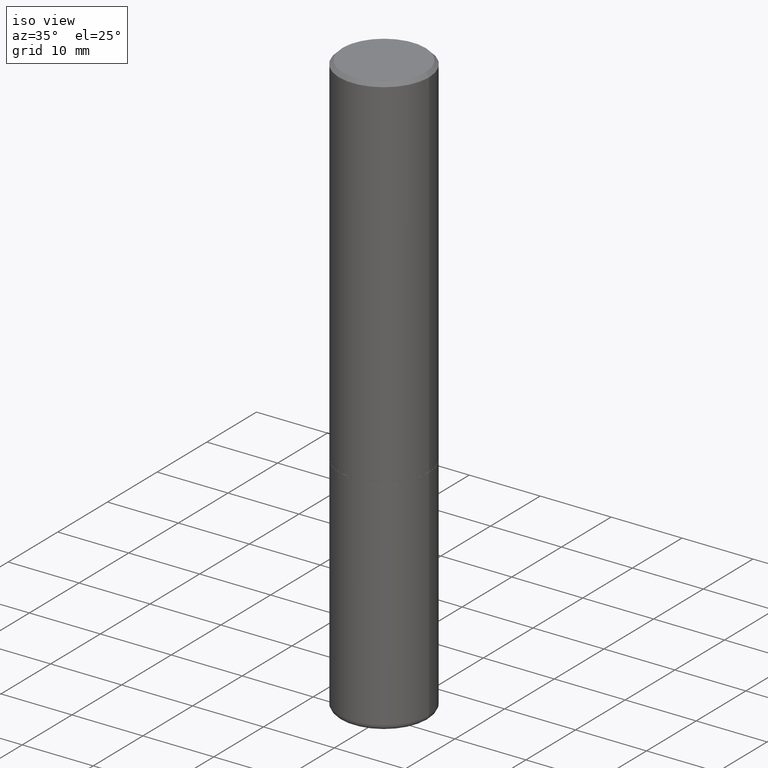
[diagram: clean part render]
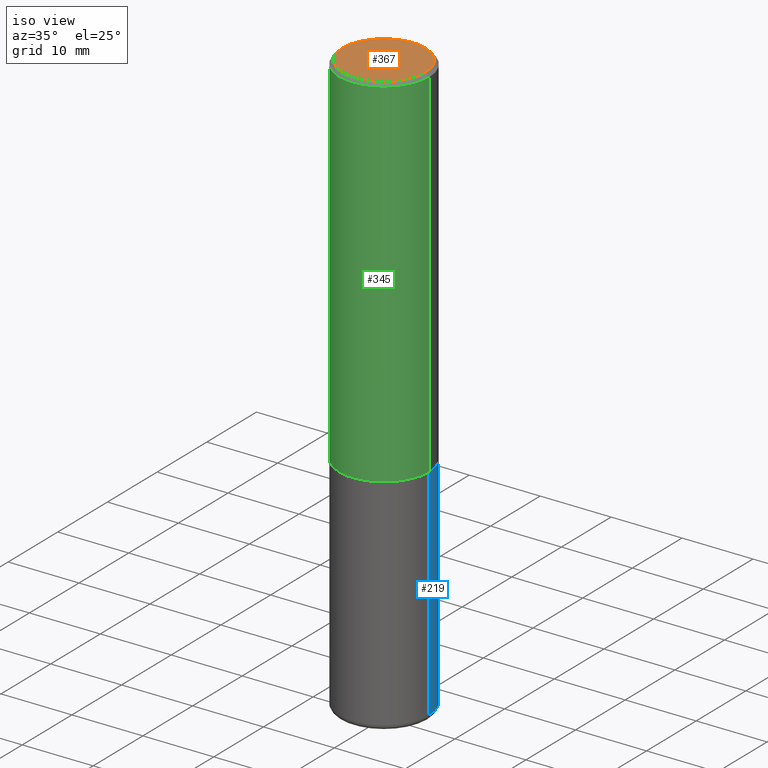
[diagram: same view with three faces highlighted in distinct colors, each labeled with its STEP entity id]
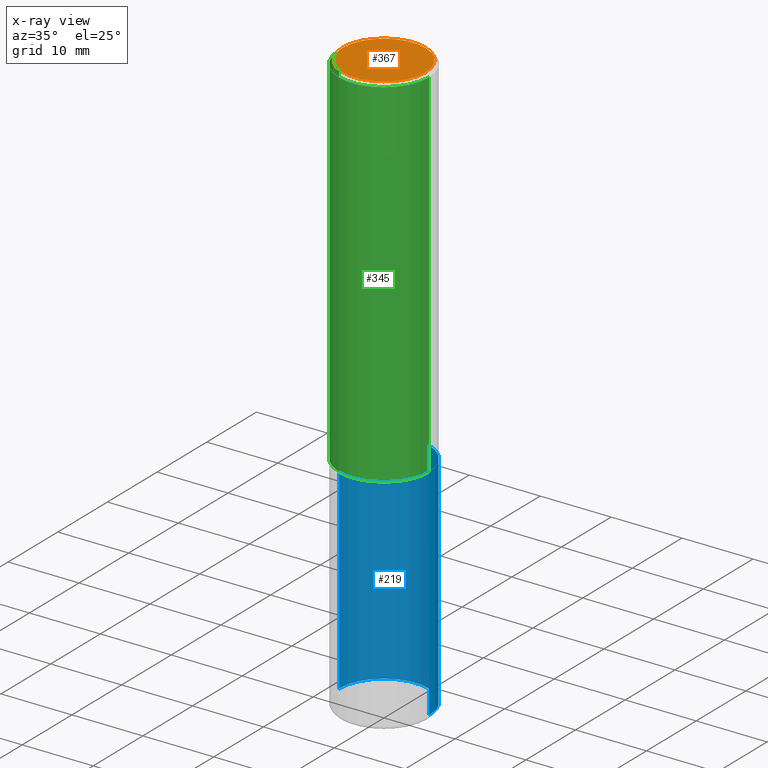
[diagram: x-ray of the same camera — body ghosted, the three highlighted faces saturated]
A machine part, iso view with three faces highlighted in distinct colors.
The next image is the same camera in x-ray (body ghosted, the three faces saturated) — at least one of them is partly hidden behind the body in this view.
Their STEP definitions:

[orange] entity #367 — the highlighted planar face has unit normal (0, -0, -1).
#14 = EDGE_CURVE ( 'NONE', #383, #375, #177, .T. ) ;
#28 = DIRECTION ( 'NONE',  ( -2.445468806185136597E-29, 3.491481338843145583E-15, 1.000000000000000000 ) ) ;
#49 = CIRCLE ( 'NONE', #330, 0.2299999999999993161 ) ;
#108 = DIRECTION ( 'NONE',  ( 1.000000000000000000, -6.982962677686267499E-15, 4.876225828469323455E-29 ) ) ;
#119 = DIRECTION ( 'NONE',  ( 2.438088387897960049E-29, -3.491481338843145188E-15, -1.000000000000000000 ) ) ;
#156 = PLANE ( 'NONE',  #401 ) ;
#177 = CIRCLE ( 'NONE', #297, 0.2299999999999993161 ) ;
#212 = ORIENTED_EDGE ( 'NONE', *, *, #14, .T. ) ;
#222 = CARTESIAN_POINT ( 'NONE',  ( -1.043851414335219820E-46, 1.490343170380447200E-32, 4.268512490100411279E-18 ) ) ;
#231 = FACE_OUTER_BOUND ( 'NONE', #397, .T. ) ;
#257 = ORIENTED_EDGE ( 'NONE', *, *, #445, .T. ) ;
#297 = AXIS2_PLACEMENT_3D ( 'NONE', #358, #325, #463 ) ;
#318 = CARTESIAN_POINT ( 'NONE',  ( 1.606081415867836334E-15, 0.2299999999999993161, -8.009064516888709120E-16 ) ) ;
#325 = DIRECTION ( 'NONE',  ( -2.445468806185136597E-29, 3.491481338843145583E-15, 1.000000000000000000 ) ) ;
#330 = AXIS2_PLACEMENT_3D ( 'NONE', #222, #28, #108 ) ;
#340 = CARTESIAN_POINT ( 'NONE',  ( -0.2299999999999993161, 1.640996229256267786E-15, 4.268512490089056766E-18 ) ) ;
#346 = CARTESIAN_POINT ( 'NONE',  ( 0.2299999999999993161, -1.681434332853594870E-15, 4.268512490111905999E-18 ) ) ;
#358 = CARTESIAN_POINT ( 'NONE',  ( -1.043851414335219820E-46, 1.490343170380447200E-32, 4.268512490100411279E-18 ) ) ;
#367 = ADVANCED_FACE ( 'NONE', ( #231 ), #156, .F. ) ;
#375 = VERTEX_POINT ( 'NONE', #346 ) ;
#383 = VERTEX_POINT ( 'NONE', #340 ) ;
#397 = EDGE_LOOP ( 'NONE', ( #212, #257 ) ) ;
#401 = AXIS2_PLACEMENT_3D ( 'NONE', #318, #119, #460 ) ;
#445 = EDGE_CURVE ( 'NONE', #375, #383, #49, .T. ) ;
#460 = DIRECTION ( 'NONE',  ( -1.000000000000000000, 6.982962677686265922E-15, -4.876176775795935793E-29 ) ) ;
#463 = DIRECTION ( 'NONE',  ( 1.000000000000000000, -6.982962677686267499E-15, 4.876225828469323455E-29 ) ) ;

[blue] entity #219 — the highlighted cylindrical surface (partial cylindrical patch) has radius 6.35 mm, axis along (-0, 0, 1).
#1 = ORIENTED_EDGE ( 'NONE', *, *, #294, .T. ) ;
#8 = VECTOR ( 'NONE', #382, 39.37007874015748143 ) ;
#18 = AXIS2_PLACEMENT_3D ( 'NONE', #207, #253, #487 ) ;
#23 = CARTESIAN_POINT ( 'NONE',  ( 0.2499999999999996114, -8.728703347107855476E-15, -2.000000000000000000 ) ) ;
#40 = VERTEX_POINT ( 'NONE', #54 ) ;
#54 = CARTESIAN_POINT ( 'NONE',  ( 0.2499999999999994449, -1.298831456884381922E-14, -3.220001142308074549 ) ) ;
#65 = CARTESIAN_POINT ( 'NONE',  ( 0.2499999999999995282, -1.745740669421563325E-15, 1.219044193948981566E-29 ) ) ;
#113 = AXIS2_PLACEMENT_3D ( 'NONE', #454, #272, #314 ) ;
#128 = VERTEX_POINT ( 'NONE', #23 ) ;
#137 = CIRCLE ( 'NONE', #113, 0.2499999999999996114 ) ;
#188 = LINE ( 'NONE', #343, #8 ) ;
#207 = CARTESIAN_POINT ( 'NONE',  ( 7.874412349394904045E-29, -1.124257389942225570E-14, -3.220001142308074549 ) ) ;
#209 = CARTESIAN_POINT ( 'NONE',  ( 0.000000000000000000, 0.000000000000000000, 0.000000000000000000 ) ) ;
#217 = LINE ( 'NONE', #65, #273 ) ;
#219 = ADVANCED_FACE ( 'NONE', ( #307 ), #440, .T. ) ;
#235 = CARTESIAN_POINT ( 'NONE',  ( -0.2499999999999994449, -7.336411449154026516E-15, -3.220001142308074549 ) ) ;
#253 = DIRECTION ( 'NONE',  ( -2.445468806185136597E-29, 3.491481338843145583E-15, 1.000000000000000000 ) ) ;
#254 = EDGE_CURVE ( 'NONE', #40, #128, #217, .T. ) ;
#260 = VERTEX_POINT ( 'NONE', #374 ) ;
#272 = DIRECTION ( 'NONE',  ( -2.445468806185136597E-29, 3.491481338843145583E-15, 1.000000000000000000 ) ) ;
#273 = VECTOR ( 'NONE', #368, 39.37007874015748143 ) ;
#294 = EDGE_CURVE ( 'NONE', #40, #337, #441, .T. ) ;
#295 = DIRECTION ( 'NONE',  ( 1.000000000000000000, -6.982962677686266711E-15, 4.876176775795935232E-29 ) ) ;
#307 = FACE_OUTER_BOUND ( 'NONE', #422, .T. ) ;
#314 = DIRECTION ( 'NONE',  ( 1.000000000000000000, -6.982962677686265922E-15, 0.000000000000000000 ) ) ;
#321 = ORIENTED_EDGE ( 'NONE', *, *, #254, .F. ) ;
#336 = EDGE_CURVE ( 'NONE', #128, #260, #137, .T. ) ;
#337 = VERTEX_POINT ( 'NONE', #235 ) ;
#343 = CARTESIAN_POINT ( 'NONE',  ( -0.2499999999999995282, 1.776356839400247112E-15, -1.229733772563724063E-29 ) ) ;
#368 = DIRECTION ( 'NONE',  ( -2.445468806185136877E-29, 3.491481338843145188E-15, 1.000000000000000000 ) ) ;
#372 = ORIENTED_EDGE ( 'NONE', *, *, #407, .T. ) ;
#374 = CARTESIAN_POINT ( 'NONE',  ( -0.2499999999999996114, -7.336411449154026516E-15, -2.000000000000000000 ) ) ;
#376 = DIRECTION ( 'NONE',  ( -2.445468806185136597E-29, 3.491481338843145583E-15, 1.000000000000000000 ) ) ;
#382 = DIRECTION ( 'NONE',  ( -2.445468806185136877E-29, 3.491481338843145188E-15, 1.000000000000000000 ) ) ;
#407 = EDGE_CURVE ( 'NONE', #337, #260, #188, .T. ) ;
#422 = EDGE_LOOP ( 'NONE', ( #1, #372, #444, #321 ) ) ;
#440 = CYLINDRICAL_SURFACE ( 'NONE', #447, 0.2499999999999995282 ) ;
#441 = CIRCLE ( 'NONE', #18, 0.2499999999999994449 ) ;
#444 = ORIENTED_EDGE ( 'NONE', *, *, #336, .F. ) ;
#447 = AXIS2_PLACEMENT_3D ( 'NONE', #209, #376, #295 ) ;
#454 = CARTESIAN_POINT ( 'NONE',  ( 4.890937612370273194E-29, -6.982962677686291165E-15, -2.000000000000000000 ) ) ;
#487 = DIRECTION ( 'NONE',  ( 1.000000000000000000, -6.982962677686270655E-15, 0.000000000000000000 ) ) ;

[green] entity #345 — the highlighted cylindrical surface (partial cylindrical patch) has radius 6.35 mm, axis along (-0, 0, 1).
#3 = DIRECTION ( 'NONE',  ( -2.445468806185136877E-29, 3.491481338843145188E-15, 1.000000000000000000 ) ) ;
#11 = LINE ( 'NONE', #347, #69 ) ;
#15 = VERTEX_POINT ( 'NONE', #160 ) ;
#21 = DIRECTION ( 'NONE',  ( 1.000000000000000000, -6.982962677686266711E-15, 0.000000000000000000 ) ) ;
#24 = VECTOR ( 'NONE', #369, 39.37007874015748143 ) ;
#25 = CARTESIAN_POINT ( 'NONE',  ( 4.888492143564087591E-29, -6.979471196347447369E-15, -1.998999999999999888 ) ) ;
#32 = EDGE_LOOP ( 'NONE', ( #426, #141, #76, #121 ) ) ;
#38 = DIRECTION ( 'NONE',  ( 1.000000000000000000, -6.982962677686267499E-15, 0.000000000000000000 ) ) ;
#42 = CARTESIAN_POINT ( 'NONE',  ( 0.2499999999999994449, -1.745740669421562733E-15, 1.219044193948981146E-29 ) ) ;
#59 = EDGE_CURVE ( 'NONE', #15, #317, #364, .T. ) ;
#69 = VECTOR ( 'NONE', #3, 39.37007874015748143 ) ;
#76 = ORIENTED_EDGE ( 'NONE', *, *, #210, .T. ) ;
#82 = DIRECTION ( 'NONE',  ( 1.000000000000000000, -6.982962677686266711E-15, 4.876176775795935232E-29 ) ) ;
#111 = CARTESIAN_POINT ( 'NONE',  ( 0.000000000000000000, 0.000000000000000000, 0.000000000000000000 ) ) ;
#121 = ORIENTED_EDGE ( 'NONE', *, *, #59, .F. ) ;
#139 = AXIS2_PLACEMENT_3D ( 'NONE', #285, #155, #21 ) ;
#141 = ORIENTED_EDGE ( 'NONE', *, *, #197, .T. ) ;
#155 = DIRECTION ( 'NONE',  ( -2.445468806185136597E-29, 3.491481338843145583E-15, 1.000000000000000000 ) ) ;
#160 = CARTESIAN_POINT ( 'NONE',  ( -0.2499999999999993894, 1.675911042644699041E-15, -0.02000000000000013226 ) ) ;
#197 = EDGE_CURVE ( 'NONE', #373, #224, #324, .T. ) ;
#210 = EDGE_CURVE ( 'NONE', #224, #317, #480, .T. ) ;
#221 = DIRECTION ( 'NONE',  ( -2.445468806185136597E-29, 3.491481338843145583E-15, 1.000000000000000000 ) ) ;
#224 = VERTEX_POINT ( 'NONE', #331 ) ;
#279 = CARTESIAN_POINT ( 'NONE',  ( -0.2499999999999995559, -1.748293572161906447E-15, -1.998999999999999888 ) ) ;
#285 = CARTESIAN_POINT ( 'NONE',  ( 4.890937612370304688E-31, -6.982962677686337215E-17, -0.02000000000000013226 ) ) ;
#305 = CARTESIAN_POINT ( 'NONE',  ( 0.2499999999999993894, -1.784954126219741850E-15, -0.02000000000000013226 ) ) ;
#317 = VERTEX_POINT ( 'NONE', #305 ) ;
#324 = CIRCLE ( 'NONE', #363, 0.2499999999999995559 ) ;
#331 = CARTESIAN_POINT ( 'NONE',  ( 0.2499999999999995559, -8.725211865769010891E-15, -1.998999999999999888 ) ) ;
#345 = ADVANCED_FACE ( 'NONE', ( #351 ), #384, .T. ) ;
#347 = CARTESIAN_POINT ( 'NONE',  ( -0.2499999999999994449, 1.776356839400246520E-15, -1.229733772563723783E-29 ) ) ;
#351 = FACE_OUTER_BOUND ( 'NONE', #32, .T. ) ;
#363 = AXIS2_PLACEMENT_3D ( 'NONE', #25, #221, #38 ) ;
#364 = CIRCLE ( 'NONE', #139, 0.2499999999999993894 ) ;
#369 = DIRECTION ( 'NONE',  ( -2.445468806185136877E-29, 3.491481338843145188E-15, 1.000000000000000000 ) ) ;
#373 = VERTEX_POINT ( 'NONE', #279 ) ;
#384 = CYLINDRICAL_SURFACE ( 'NONE', #427, 0.2499999999999994449 ) ;
#415 = EDGE_CURVE ( 'NONE', #373, #15, #11, .T. ) ;
#419 = DIRECTION ( 'NONE',  ( -2.445468806185136597E-29, 3.491481338843145583E-15, 1.000000000000000000 ) ) ;
#426 = ORIENTED_EDGE ( 'NONE', *, *, #415, .F. ) ;
#427 = AXIS2_PLACEMENT_3D ( 'NONE', #111, #419, #82 ) ;
#480 = LINE ( 'NONE', #42, #24 ) ;